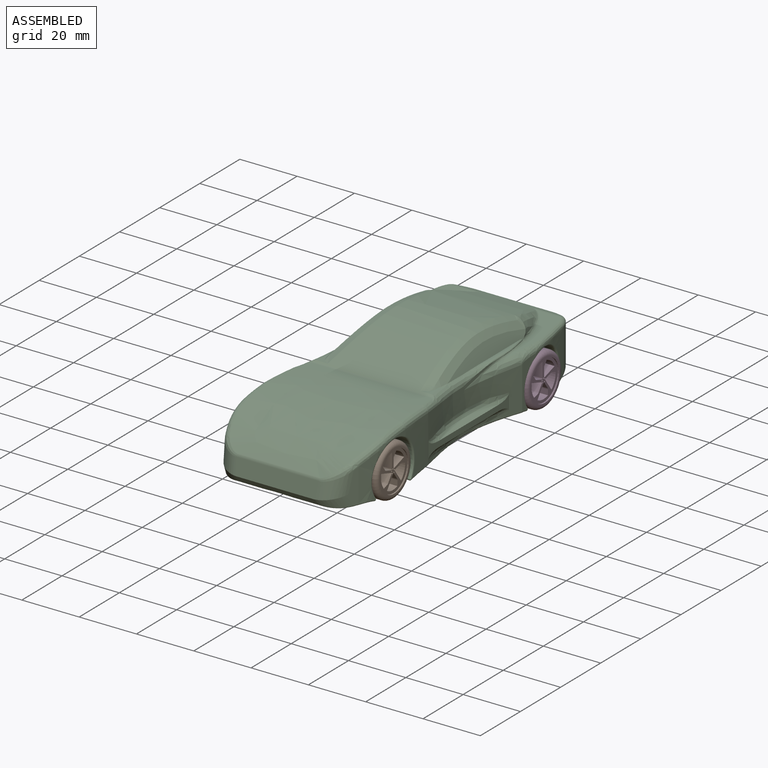
[diagram: assembled view]
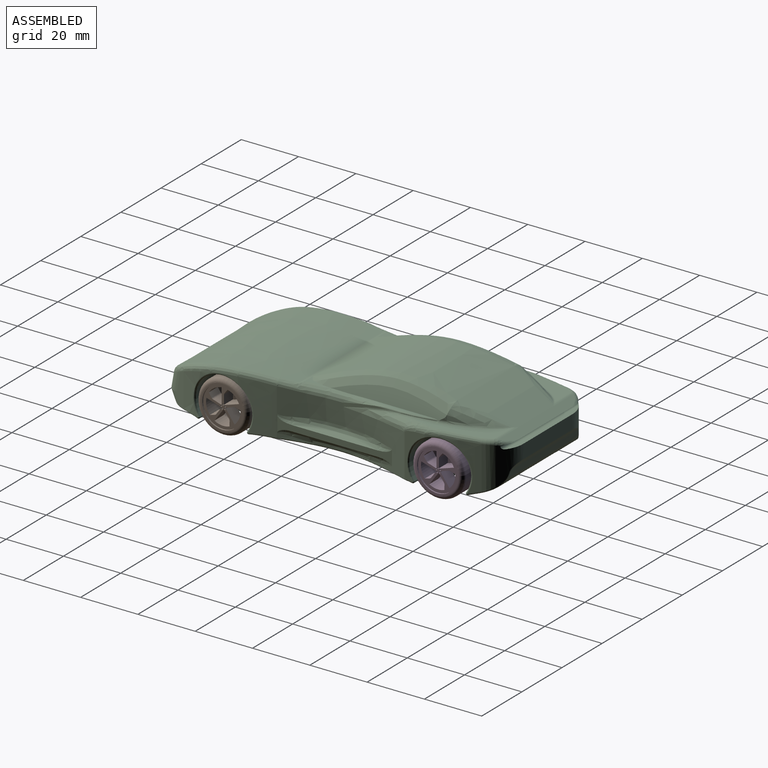
[diagram: assembled view, second angle]
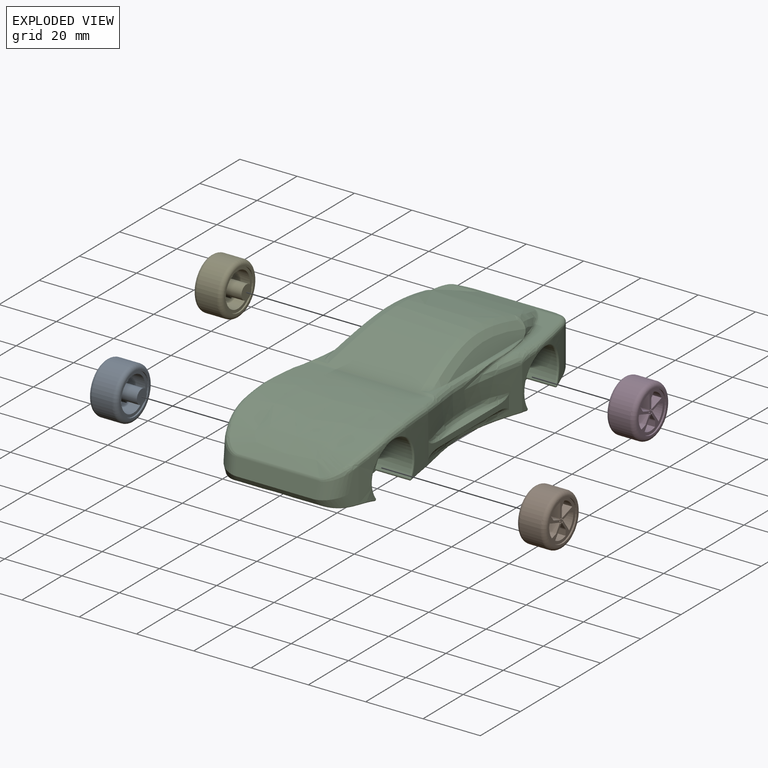
[diagram: exploded view]
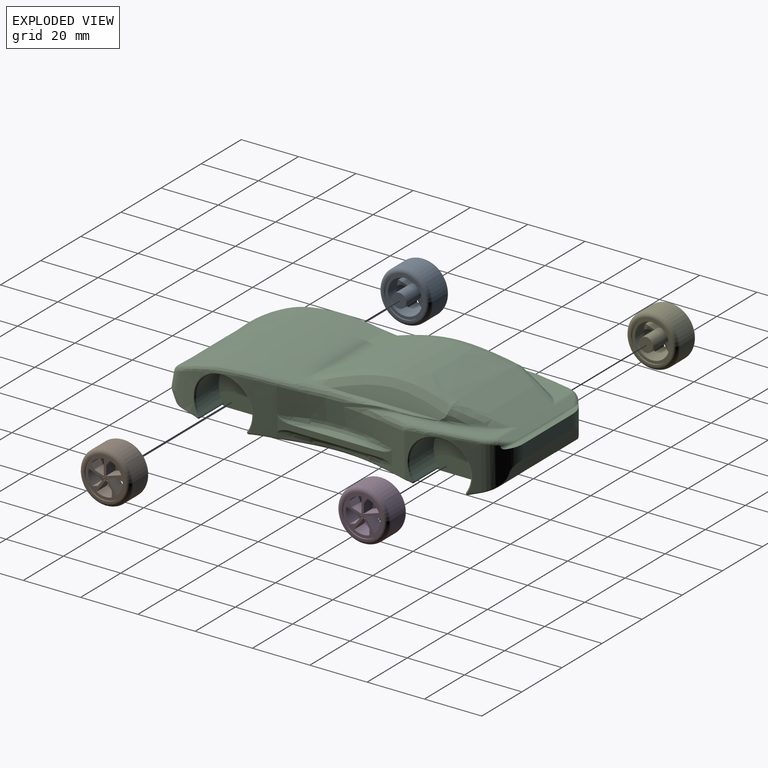
[diagram: exploded view, second angle]
ASSEMBLY  parts=5 mates=4
PART A: 57 faces, bbox 12.5x19.5x19.5 mm
  f0: plane 3.94x2.7mm, normal (-1,0,0), area 4mm2, adj f9,f26,f27,f28,f29,f55
  f1: plane 3.84x2.02mm, normal (-1,0,0), area 4mm2, adj f9,f31,f32,f33,f34,f55
  f2: plane 3.56x2.07mm, normal (-1,0,0), area 4mm2, adj f9,f12,f13,f14,f41,f55
  f3: plane 3.57x3.01mm, normal (-1,0,0), area 4mm2, adj f9,f16,f17,f18,f19,f55
  f4: cylinder r=7mm len=14mm, axis (-1,0,0), area 22mm2, adj f8,f11
  f5: cylinder r=7mm len=14mm, axis (-1,0,0), area 22mm2, adj f7,f10
  f6: cylinder r=9mm len=18mm, axis (-1,0,0), area 395.8mm2, adj f43,f44
  f7: plane 15x15mm, normal (1,0,0), area 22.8mm2, adj f5,f44
  f8: plane 15x15mm, normal (-1,0,0), area 22.8mm2, adj f4,f43
  f9: cylinder r=6mm len=12mm, axis (-1,0,0), area 292.3mm2, adj f0,f1,f2,f3,f10,f11,f13,f14
  f10: plane 14x14mm, normal (1,0,0), area 68.9mm2, adj f5,f9,f12,f13,f14,f15,f16,f17
  f11: plane 14x14mm, normal (-1,0,0), area 40.8mm2, adj f4,f9
  f12: cylinder r=1mm len=4.5mm, axis (-1,0,0), area 3mm2, adj f2,f10,f13,f41
  f13: plane 4.5x1.38mm, normal (0,0.79,-0.61), area 7.8mm2, adj f2,f9,f10,f12
  f14: plane 5.23x4.5mm, normal (0,-1,0), area 23.5mm2, adj f2,f9,f10,f15,f54
  f15: plane 4.5x0.27mm, normal (0,-0.95,0.32), area 1.3mm2, adj f10,f14,f16,f54
  f16: plane 4.5x2.92mm, normal (0,0.31,0.95), area 13.8mm2, adj f3,f10,f15,f17,f54
  f17: cylinder r=1mm len=4.5mm, axis (-1,0,0), area 3mm2, adj f3,f10,f16,f18
  f18: plane 4.5x1.44mm, normal (0,0.83,0.56), area 7.8mm2, adj f3,f9,f10,f17
  f19: plane 4.97x4.5mm, normal (0,-0.31,-0.95), area 23.5mm2, adj f3,f9,f10,f20,f53
  f20: plane 4.5x0.23mm, normal (0,-0.59,-0.8), area 1.3mm2, adj f10,f19,f21,f53
  f21: plane 4.5x2.48mm, normal (0,-0.81,0.59), area 13.8mm2, adj f10,f20,f22,f42,f53
  f22: cylinder r=1mm len=4.5mm, axis (-1,0,0), area 3mm2, adj f10,f21,f23,f42
  f23: plane 4.5x1.67mm, normal (0,-0.28,0.96), area 7.8mm2, adj f9,f10,f22,f42
  f24: plane 4.5x4.23mm, normal (0,0.81,-0.59), area 23.5mm2, adj f9,f10,f25,f42,f52
  f25: plane 4.5x0.23mm, normal (0,0.58,-0.81), area 1.3mm2, adj f10,f24,f26,f52
  f26: plane 4.5x2.48mm, normal (0,-0.81,-0.59), area 13.8mm2, adj f0,f10,f25,f27,f52
  f27: cylinder r=1mm len=4.5mm, axis (-1,0,0), area 3mm2, adj f0,f10,f26,f28
  f28: plane 4.5x1.74mm, normal (0,-1,0.03), area 7.8mm2, adj f0,f9,f10,f27
  f29: plane 4.5x4.23mm, normal (0,0.81,0.59), area 23.5mm2, adj f0,f9,f10,f30,f51
  f30: plane 4.5x0.27mm, normal (0,0.95,0.3), area 1.3mm2, adj f10,f29,f31,f51
  f31: plane 4.5x2.92mm, normal (0,0.31,-0.95), area 13.8mm2, adj f1,f10,f30,f32,f51
  f32: cylinder r=1mm len=4.5mm, axis (-1,0,0), area 3mm2, adj f1,f10,f31,f33
  f33: plane 4.5x1.64mm, normal (0,-0.34,-0.94), area 7.8mm2, adj f1,f9,f10,f32
  f34: plane 4.97x4.5mm, normal (0,-0.31,0.95), area 23.5mm2, adj f1,f9,f10,f35,f50
  f35: plane 4.5x0.29mm, normal (0,0.01,1), area 1.3mm2, adj f10,f34,f41,f50
  f36: cylinder r=0.25mm len=4.5mm, axis (-1,0,0), area 7.1mm2, adj f10,f49
  f37: cylinder r=0.25mm len=4.5mm, axis (-1,0,0), area 7.1mm2, adj f10,f48
  f38: cylinder r=0.25mm len=4.5mm, axis (-1,0,0), area 7.1mm2, adj f10,f47
  f39: cylinder r=0.25mm len=4.5mm, axis (-1,0,0), area 7.1mm2, adj f10,f46
  f40: cylinder r=0.25mm len=4.5mm, axis (-1,0,0), area 7.1mm2, adj f10,f45
  f41: plane 4.5x3.07mm, normal (0,1,0), area 13.8mm2, adj f2,f10,f12,f35,f50
  f42: plane 3.65x3.29mm, normal (-1,0,0), area 4mm2, adj f9,f21,f22,f23,f24,f55
  f43: torus R=7.5mm, axis (1,0,0), area 125.2mm2, adj f6,f8
  f44: torus R=7.5mm, axis (1,0,0), area 125.2mm2, adj f6,f7
  f45: plane 0.5x0.5mm, normal (1,0,0), area 0.2mm2, adj f40
  f46: plane 0.5x0.5mm, normal (1,0,0), area 0.2mm2, adj f39
  f47: plane 0.5x0.5mm, normal (1,0,0), area 0.2mm2, adj f38
  f48: plane 0.5x0.5mm, normal (1,0,0), area 0.2mm2, adj f37
  f49: plane 0.5x0.5mm, normal (1,0,0), area 0.2mm2, adj f36
  f50: plane 1.9x1.74mm, normal (1,0,0), area 2.1mm2, adj f34,f35,f41,f55
  f51: plane 2.18x1.71mm, normal (1,0,0), area 2.1mm2, adj f29,f30,f31,f55
  f52: plane 2.25x1.74mm, normal (1,0,0), area 2.1mm2, adj f24,f25,f26,f55
  f53: plane 2.1x1.85mm, normal (1,0,0), area 2.1mm2, adj f19,f20,f21,f55
  f54: plane 1.96x1.74mm, normal (1,0,0), area 2.1mm2, adj f14,f15,f16,f55
  f55: cylinder r=2.5mm len=7.5mm, axis (1,0,0), area 117.8mm2, adj f0,f1,f2,f3,f42,f50,f51,f52
  f56: plane 5x5mm, normal (-1,0,0), area 19.6mm2, adj f55
PART B: same geometry as A
PART C: 199 faces, bbox 54.2x122x32.5 mm
  f0: plane 21.26x1.34mm, normal (0,0,1), area 18mm2, adj f102,f111,f112,f130
  f1: plane 7.45x5.98mm, normal (0,0,1), area 6.5mm2, adj f2,f106,f129
  f2: extruded ~70.31x42.83mm, area 1966.8mm2, adj f1,f12,f17,f87,f96,f100,f101,f105
  f3: extruded ~45.1x16.69mm, area 385.9mm2, adj f4,f40,f41,f45,f46,f47,f48,f49
  f4: plane 1.52x0mm, normal (0,1,0), area 0mm2, adj f3,f5,f63,f115,f130
  f5: plane 15.78x3.33mm, normal (-1,0,0), area 13.2mm2, adj f4,f112,f115,f130
  f6: extruded ~1.85x0.48mm, area 0.3mm2, adj f102,f107,f116
  f7: extruded ~44.92x12.32mm, area 516.2mm2, adj f14,f34,f35,f88,f150,f154,f192,f193
  f8: plane 16.2x6.72mm, normal (1,0,0), area 33.9mm2, adj f141,f144,f147,f180,f184
  f9: plane 24.45x4.8mm, normal (0,1,0), area 117.5mm2, adj f10,f91,f92,f198
  f10: plane 36.45x2mm, normal (0,0,1), area 65.3mm2, adj f9,f18,f91,f92
  f11: plane 38.76x0.52mm, normal (0,1,0), area 19.4mm2, adj f12,f18,f91,f92,f96,f100
  f12: plane 38.89x2.28mm, normal (0,0,-1), area 70.4mm2, adj f2,f11,f96,f100
  f13: cylinder r=10mm len=19.99mm, axis (-1,0,0), area 475.5mm2, adj f34,f154,f155,f184,f186,f188
  f14: cylinder r=5mm len=34.16mm, axis (-1,0,0), area 83.8mm2, adj f7,f196,f197,f198
  f15: plane 27.49x12.39mm, normal (0,0,1), area 98.1mm2, adj f16,f17,f93,f94,f122,f123,f124,f125
  f16: bspline ~36.29x7.68mm, area 67.6mm2, adj f15,f36,f59,f126,f127,f128,f144
  f17: cylinder r=3mm len=10.65mm, axis (-1,0,0), area 10.5mm2, adj f2,f15,f95,f121
  f18: cylinder r=1mm len=38.73mm, axis (1,0,0), area 59mm2, adj f10,f11,f91,f92
  f19: plane 27.99x2.04mm, normal (0,-0.84,-0.55), area 65.6mm2, adj f27,f66,f68,f88,f156,f157
  f20: extruded ~20.49x14.94mm, area 170.6mm2, adj f32,f88,f148,f156,f158,f160,f162
  f21: extruded ~20.49x14.94mm, area 170.6mm2, adj f33,f88,f152,f157,f159,f161,f163
  f22: extruded ~60x18.8mm, area 859mm2, adj f32,f34,f88,f149,f155,f174,f176,f178
  f23: extruded ~60x18.8mm, area 859mm2, adj f33,f35,f88,f151,f153,f175,f177,f179
  f24: plane 16.2x6.72mm, normal (-1,0,0), area 33.9mm2, adj f136,f138,f140,f181,f185
  f25: cylinder r=10mm len=20mm, axis (-1,0,0), area 511mm2, adj f33,f152,f153,f167,f169,f171
  f26: extruded ~46.23x46mm, area 2102mm2, adj f70,f72,f74,f75,f76,f77,f78,f79
  f27: plane 28.78x5.48mm, normal (0,-0.97,0.22), area 158.9mm2, adj f19,f66,f67,f68,f69,f78
  f28: plane 9.4x2.22mm, normal (1,0,0), area 6.1mm2, adj f57,f65,f74,f168
  f29: plane 9.4x2.22mm, normal (-1,0,0), area 6.2mm2, adj f58,f64,f82,f169
  f30: cylinder r=10mm len=19.99mm, axis (-1,0,0), area 475.6mm2, adj f35,f150,f151,f185,f187,f189
  f31: cylinder r=10mm len=20mm, axis (-1,0,0), area 511mm2, adj f32,f148,f149,f166,f168,f170
  f32: plane 20.14x16.75mm, normal (1,0,0), area 279.7mm2, adj f20,f22,f31,f88,f148,f149
  f33: plane 20.14x16.75mm, normal (-1,0,0), area 279.7mm2, adj f21,f23,f25,f88,f152,f153
  f34: plane 20.16x16.77mm, normal (1,0,0), area 279.5mm2, adj f7,f13,f22,f88,f154,f155
  f35: plane 20.16x16.77mm, normal (-1,0,0), area 279.5mm2, adj f7,f23,f30,f88,f150,f151
  f36: extruded ~45.1x16.69mm, area 385.9mm2, adj f16,f42,f43,f51,f52,f53,f54,f55
  f37: plane 11.75x3.26mm, normal (-0.93,-0.37,0), area 27.6mm2, adj f64,f68,f69,f80,f161
  f38: plane 11.75x3.26mm, normal (0.93,-0.37,0), area 27.6mm2, adj f65,f66,f67,f76,f160
  f39: plane 40.12x5.12mm, normal (-1,0,0), area 87.7mm2, adj f40,f41,f45,f46,f47,f48,f49,f50
  f40: plane 5.87x0.13mm, normal (0,1,0), area 0.1mm2, adj f3,f39,f45,f50
  f41: plane 6.49x0.14mm, normal (0,-1,0), area 0.4mm2, adj f3,f39,f47,f48
  f42: plane 5.87x0.13mm, normal (0,1,0), area 0.1mm2, adj f36,f44,f53,f54
  f43: plane 6.49x0.14mm, normal (0,-1,0), area 0.4mm2, adj f36,f44,f51,f56
  f44: plane 40.12x5.12mm, normal (1,0,0), area 87.7mm2, adj f42,f43,f51,f52,f53,f54,f55,f56
  f45: bspline ~5.76x2.34mm, area 8.2mm2, adj f3,f39,f40,f46
  f46: bspline ~33.31x2.97mm, area 112.6mm2, adj f3,f39,f45,f47
  f47: bspline ~5.37x2.23mm, area 7.9mm2, adj f3,f39,f41,f46
  f48: bspline ~5.59x2.24mm, area 7.9mm2, adj f3,f39,f41,f49
  f49: bspline ~33.31x2.97mm, area 112.6mm2, adj f3,f39,f48,f50
  f50: bspline ~5.74x2.34mm, area 8.2mm2, adj f3,f39,f40,f49
  f51: bspline ~5.37x2.23mm, area 7.9mm2, adj f36,f43,f44,f52
  f52: bspline ~33.31x2.97mm, area 112.6mm2, adj f36,f44,f51,f53
  f53: bspline ~5.74x2.34mm, area 8.2mm2, adj f36,f42,f44,f52
  f54: bspline ~5.76x2.34mm, area 8.2mm2, adj f36,f42,f44,f55
  f55: bspline ~33.31x2.97mm, area 112.6mm2, adj f36,f44,f54,f56
  f56: bspline ~5.59x2.24mm, area 7.9mm2, adj f36,f43,f44,f55
  f57: bspline ~21.34x12.96mm, area 159mm2, adj f28,f36,f71,f72,f73,f170,f174
  f58: bspline ~21.34x12.96mm, area 159mm2, adj f3,f29,f83,f84,f85,f171,f175
  f59: plane 1.52x0mm, normal (0,1,0), area 0mm2, adj f16,f36,f61,f128,f129
  f60: extruded ~1.85x0.48mm, area 0.3mm2, adj f104,f105,f123
  f61: plane 15.78x3.33mm, normal (1,0,0), area 13.2mm2, adj f59,f110,f128,f129
  f62: plane 27.5x12.39mm, normal (0,0,1), area 98.1mm2, adj f63,f87,f97,f98,f114,f116,f118,f120
  f63: bspline ~38.85x7.76mm, area 69.1mm2, adj f3,f4,f62,f115,f117,f119,f138
  f64: bspline ~19.53x10.99mm, area 76.9mm2, adj f29,f37,f81,f163,f167
  f65: bspline ~19.53x10.99mm, area 76.9mm2, adj f28,f38,f75,f162,f166
  f66: cylinder r=8mm len=11.09mm, axis (-0.21,-0.53,0.82), area 36.8mm2, adj f19,f27,f38,f67,f158
  f67: cylinder r=8mm len=12.07mm, axis (0.09,0.22,0.97), area 61.9mm2, adj f27,f38,f66,f77
  f68: cylinder r=8mm len=11.09mm, axis (-0.21,0.53,-0.82), area 36.8mm2, adj f19,f27,f37,f69,f159
  f69: cylinder r=8mm len=12.07mm, axis (0.09,-0.22,-0.97), area 61.9mm2, adj f27,f37,f68,f79
  f70: bspline ~13.83x4.19mm, area 18.6mm2, adj f26,f36,f71,f129,f133
  f71: bspline ~2x1.98mm, area 0.1mm2, adj f57,f70,f72
  f72: bspline ~13.4x3.05mm, area 40.7mm2, adj f26,f57,f71,f73
  f73: bspline ~2x2mm, area 0mm2, adj f57,f72,f74
  f74: bspline ~14.8x4.07mm, area 30.3mm2, adj f26,f28,f73,f75
  f75: bspline ~12.33x5.63mm, area 35.6mm2, adj f26,f65,f74,f76
  f76: bspline ~7.51x5.21mm, area 5.7mm2, adj f26,f38,f75,f77
  f77: bspline ~9.18x7.07mm, area 19mm2, adj f26,f67,f76,f78
  f78: cylinder r=2mm len=28.77mm, axis (-1,0,0), area 26.6mm2, adj f26,f27,f77,f79
  f79: bspline ~9.18x7.07mm, area 19mm2, adj f26,f69,f78,f80
  f80: bspline ~7.51x5.21mm, area 5.7mm2, adj f26,f37,f79,f81
  f81: bspline ~12.33x5.63mm, area 35.6mm2, adj f26,f64,f80,f82
  f82: bspline ~14.8x4.07mm, area 30.3mm2, adj f26,f29,f81,f83
  f83: bspline ~2x2mm, area 0.1mm2, adj f58,f82,f84
  f84: bspline ~13.4x3.06mm, area 40.7mm2, adj f26,f58,f83,f85
  f85: bspline ~2x1.98mm, area 0mm2, adj f58,f84,f86
  f86: bspline ~13.83x4.19mm, area 18.6mm2, adj f3,f26,f85,f130,f131
  f87: cylinder r=3mm len=10.65mm, axis (-1,0,0), area 10.5mm2, adj f2,f62,f99,f113
  f88: extruded ~110.43x25mm, area 2068.8mm2, adj f7,f19,f20,f21,f22,f23,f32,f33
  f89: extruded ~17.7x16.51mm, area 77.6mm2, adj f92,f97,f134,f137,f140,f189,f193
  f90: extruded ~17.7x16.51mm, area 77.6mm2, adj f91,f93,f143,f145,f147,f188,f192
  f91: cylinder r=10mm len=14.93mm, axis (0,0,1), area 130.1mm2, adj f9,f10,f11,f18,f90,f94,f95,f96
  f92: cylinder r=10mm len=14.93mm, axis (0,0,1), area 130.1mm2, adj f9,f10,f11,f18,f89,f98,f99,f100
  f93: bspline ~16.98x4.65mm, area 31.3mm2, adj f15,f90,f94,f143
  f94: torus R=8.5mm, axis (0,0,1), area 8.1mm2, adj f15,f91,f93,f95
  f95: bspline ~2.64x2.17mm, area 2.3mm2, adj f17,f91,f94,f96
  f96: bspline ~8.7x5.42mm, area 6.5mm2, adj f2,f11,f12,f91,f95
  f97: bspline ~22.55x6.02mm, area 31.3mm2, adj f62,f89,f98,f134
  f98: torus R=8.5mm, axis (0,0,1), area 8.1mm2, adj f62,f92,f97,f99
  f99: bspline ~3x2.4mm, area 2.3mm2, adj f87,f92,f98,f100
  f100: bspline ~8.7x5.42mm, area 6.5mm2, adj f2,f11,f12,f92,f99
  f101: plane 7.45x5.97mm, normal (0,0,1), area 6.5mm2, adj f2,f108,f130
  f102: plane 40.36x5.56mm, normal (-0.92,0,0.4), area 143.9mm2, adj f0,f6,f107,f108,f111,f118,f130
  f103: plane 21.26x1.34mm, normal (0,0,1), area 18mm2, adj f104,f109,f110,f129
  f104: plane 40.36x5.56mm, normal (0.92,0,0.4), area 143.9mm2, adj f60,f103,f105,f106,f109,f124,f129
  f105: bspline ~23.63x11.91mm, area 91.9mm2, adj f2,f60,f104,f106,f121,f122
  f106: bspline ~53.47x10.7mm, area 274.2mm2, adj f1,f2,f104,f105,f129
  f107: bspline ~23.63x11.91mm, area 91.9mm2, adj f2,f6,f102,f108,f113,f114
  f108: bspline ~53.47x10.7mm, area 274.2mm2, adj f2,f101,f102,f107,f130
  f109: bspline ~22.55x2.65mm, area 9.2mm2, adj f103,f104,f110,f125,f126
  f110: cylinder r=0.5mm len=8.63mm, axis (0,-1,0), area 4.7mm2, adj f61,f103,f109,f127,f129
  f111: bspline ~22.55x2.65mm, area 9.2mm2, adj f0,f102,f112,f119,f120
  f112: cylinder r=0.5mm len=8.63mm, axis (0,1,0), area 4.7mm2, adj f0,f5,f111,f117,f130
  f113: bspline ~2.39x1.55mm, area 0.5mm2, adj f87,f107,f114
  f114: bspline ~20.86x10.64mm, area 21.1mm2, adj f62,f107,f113,f116
  f115: bspline ~18.62x3.6mm, area 8.6mm2, adj f4,f5,f63,f117
  f116: bspline ~7.67x2.98mm, area 3mm2, adj f6,f62,f114,f118
  f117: bspline ~7.51x0.98mm, area 3.6mm2, adj f63,f112,f115,f119
  f118: bspline ~1.93x1.29mm, area 1.5mm2, adj f62,f102,f116,f120
  f119: bspline ~4.32x0.88mm, area 3.5mm2, adj f63,f111,f117,f120
  f120: bspline ~7.74x2.16mm, area 7mm2, adj f62,f111,f118,f119
  f121: bspline ~2.39x1.55mm, area 0.5mm2, adj f17,f105,f122
  f122: bspline ~20.68x10.35mm, area 21.1mm2, adj f15,f105,f121,f123
  f123: bspline ~4.56x2.08mm, area 3mm2, adj f15,f60,f122,f124
  f124: bspline ~2x1.3mm, area 1.5mm2, adj f15,f104,f123,f125
  f125: bspline ~7.74x2.16mm, area 7mm2, adj f15,f109,f124,f126
  f126: bspline ~4.32x0.88mm, area 3.5mm2, adj f16,f109,f125,f127
  f127: bspline ~7.51x0.98mm, area 3.6mm2, adj f16,f110,f126,f128
  f128: bspline ~18.63x3.6mm, area 8.6mm2, adj f16,f59,f61,f127
  f129: bspline ~39.32x5.05mm, area 85.7mm2, adj f1,f2,f36,f59,f61,f70,f103,f104
  f130: bspline ~39.32x5.05mm, area 85.8mm2, adj f0,f2,f3,f4,f5,f86,f101,f102
  f131: bspline ~2.97x2.97mm, area 1.6mm2, adj f2,f86,f130,f132
  f132: cylinder r=2mm len=41.94mm, axis (-1,0,0), area 36.7mm2, adj f2,f26,f131,f133
  f133: bspline ~3.24x2.97mm, area 1.6mm2, adj f2,f70,f129,f132
  f134: bspline ~4.87x2.32mm, area 6.2mm2, adj f89,f97,f135,f137
  f135: cylinder r=2mm len=3.56mm, axis (0,-1,0), area 3.5mm2, adj f62,f134,f138
  f136: cylinder r=2mm len=14.88mm, axis (0,0,-1), area 5.3mm2, adj f3,f24,f138,f179
  f137: bspline ~1.8x1.4mm, area 0.7mm2, adj f89,f134,f138,f139
  f138: bspline ~10.63x3.39mm, area 16.9mm2, adj f24,f63,f135,f136,f137,f139
  f139: bspline ~0.75x0.75mm, area 0mm2, adj f137,f138,f140
  f140: cylinder r=2mm len=0.92mm, axis (0,0,1), area 0.1mm2, adj f24,f89,f139,f187
  f141: cylinder r=2mm len=14.88mm, axis (0,0,-1), area 5.3mm2, adj f8,f36,f144,f178
  f142: cylinder r=2mm len=3.56mm, axis (0,1,0), area 3.5mm2, adj f15,f143,f144
  f143: bspline ~4.87x2.32mm, area 6.2mm2, adj f90,f93,f142,f145
  f144: bspline ~10.63x3.39mm, area 16.9mm2, adj f8,f16,f141,f142,f145,f146
  f145: bspline ~1.8x1.4mm, area 0.7mm2, adj f90,f143,f144,f146
  f146: bspline ~0.75x0.75mm, area 0mm2, adj f144,f145,f147
  f147: cylinder r=2mm len=0.92mm, axis (0,0,1), area 0.1mm2, adj f8,f90,f146,f186
  f148: cylinder r=0.5mm len=11.6mm, axis (-1,0,0), area 13.8mm2, adj f20,f31,f32,f164
  f149: cylinder r=0.5mm len=11.77mm, axis (-1,0,0), area 13.7mm2, adj f22,f31,f32,f172
  f150: cylinder r=0.5mm len=9.96mm, axis (-1,0,0), area 12.3mm2, adj f7,f30,f35,f191
  f151: cylinder r=0.5mm len=12mm, axis (-1,0,0), area 14mm2, adj f23,f30,f35,f183
  f152: cylinder r=0.5mm len=11.6mm, axis (-1,0,0), area 13.8mm2, adj f21,f25,f33,f165
  f153: cylinder r=0.5mm len=11.77mm, axis (-1,0,0), area 13.7mm2, adj f23,f25,f33,f173
  f154: cylinder r=0.5mm len=9.96mm, axis (-1,0,0), area 12.3mm2, adj f7,f13,f34,f190
  f155: cylinder r=0.5mm len=12mm, axis (-1,0,0), area 14mm2, adj f13,f22,f34,f182
  f156: cylinder r=0.5mm len=12.34mm, axis (-1,0,0), area 1.7mm2, adj f19,f20,f88,f158
  f157: cylinder r=0.5mm len=12.34mm, axis (-1,0,0), area 1.7mm2, adj f19,f21,f88,f159
  f158: bspline ~9.94x9.46mm, area 6.2mm2, adj f20,f66,f156,f160
  f159: bspline ~9.94x9.46mm, area 6.2mm2, adj f21,f68,f157,f161
  f160: bspline ~3.82x1.9mm, area 0.6mm2, adj f20,f38,f158,f162
  f161: bspline ~3.82x1.9mm, area 0.6mm2, adj f21,f37,f159,f163
  f162: bspline ~8.58x2.97mm, area 4.8mm2, adj f20,f65,f160,f164
  f163: bspline ~8.58x2.97mm, area 4.8mm2, adj f21,f64,f161,f165
  f164: sphere r=0.5mm, area 0.7mm2, adj f148,f162,f166
  f165: sphere r=0.5mm, area 0.6mm2, adj f152,f163,f167
  f166: bspline ~16.04x7.89mm, area 15.4mm2, adj f31,f65,f164,f168
  f167: bspline ~16.47x7.09mm, area 15.4mm2, adj f25,f64,f165,f169
  f168: torus R=10.5mm, axis (1,0,0), area 7.4mm2, adj f28,f31,f166,f170
  f169: torus R=10.5mm, axis (1,0,0), area 7.4mm2, adj f25,f29,f167,f171
  f170: bspline ~16.26x5.44mm, area 13.5mm2, adj f31,f57,f168,f172
  f171: bspline ~16.27x5.46mm, area 13.5mm2, adj f25,f58,f169,f173
  f172: sphere r=0.5mm, area 0.6mm2, adj f149,f170,f174
  f173: sphere r=0.5mm, area 0.6mm2, adj f153,f171,f175
  f174: bspline ~10.61x1.48mm, area 7.5mm2, adj f22,f57,f172,f176
  f175: bspline ~10.55x1.48mm, area 7.5mm2, adj f23,f58,f173,f177
  f176: bspline ~49.25x4.26mm, area 35.7mm2, adj f22,f36,f174,f178
  f177: bspline ~49.25x4.27mm, area 35.7mm2, adj f3,f23,f175,f179
  f178: bspline ~0.94x0.62mm, area 0.3mm2, adj f22,f141,f176,f180
  f179: bspline ~0.96x0.58mm, area 0.3mm2, adj f23,f136,f177,f181
  f180: bspline ~3.69x1mm, area 1.9mm2, adj f8,f22,f178,f182
  f181: bspline ~3.69x1mm, area 1.9mm2, adj f23,f24,f179,f183
  f182: sphere r=0.5mm, area 0.6mm2, adj f155,f180,f184
  f183: sphere r=0.5mm, area 0.6mm2, adj f151,f181,f185
  f184: torus R=10.5mm, axis (1,0,0), area 13.7mm2, adj f8,f13,f182,f186
  f185: torus R=10.5mm, axis (1,0,0), area 13.7mm2, adj f24,f30,f183,f187
  f186: bspline ~0.72x0.64mm, area 0.1mm2, adj f13,f147,f184,f188
  f187: bspline ~0.74x0.67mm, area 0.1mm2, adj f30,f140,f185,f189
  f188: bspline ~17.09x16.94mm, area 22.2mm2, adj f13,f90,f186,f190
  f189: bspline ~17.09x15.95mm, area 22.2mm2, adj f30,f89,f187,f191
  f190: sphere r=0.5mm, area 0.6mm2, adj f154,f188,f192
  f191: sphere r=0.5mm, area 0.6mm2, adj f150,f189,f193
  f192: bspline ~6.56x2.76mm, area 3.6mm2, adj f7,f90,f190,f194
  f193: bspline ~9.47x3.72mm, area 3.6mm2, adj f7,f89,f191,f195
  f194: bspline ~7.91x7.72mm, area 5.7mm2, adj f7,f91,f192,f196
  f195: bspline ~7.91x7.72mm, area 5.7mm2, adj f7,f92,f193,f197
  f196: bspline ~6.61x3.49mm, area 2mm2, adj f14,f91,f194,f198
  f197: bspline ~6.54x3.03mm, area 2mm2, adj f14,f92,f195,f198
  f198: cylinder r=0.5mm len=24.45mm, axis (-1,0,0), area 8.9mm2, adj f9,f14,f196,f197
PART D: same geometry as A
PART E: same geometry as A
PLACE A rot(axis=(0,0,1),180deg) t=(-94.08,-46.94,-23.08)mm
PLACE B t=(-54.08,-46.94,-23.08)mm
PLACE C t=(-74.08,-69.44,-29.7)mm
PLACE D t=(-54.08,28.06,-23.09)mm
PLACE E rot(axis=(0,0,1),180deg) t=(-94.08,28.06,-23.09)mm
MATE fastened A.f55 <-> C.f25  axis (1,0,0) through (-86.58,-46.94,-23.08)mm
MATE fastened C.f13 <-> E.f55  axis (-1,0,0) through (-86.58,28.06,-23.09)mm
MATE fastened C.f25 <-> B.f55  axis (1,0,0) through (-61.58,-46.94,-23.08)mm
MATE fastened D.f55 <-> C.f13  axis (-1,0,0) through (-61.58,28.06,-23.09)mm
